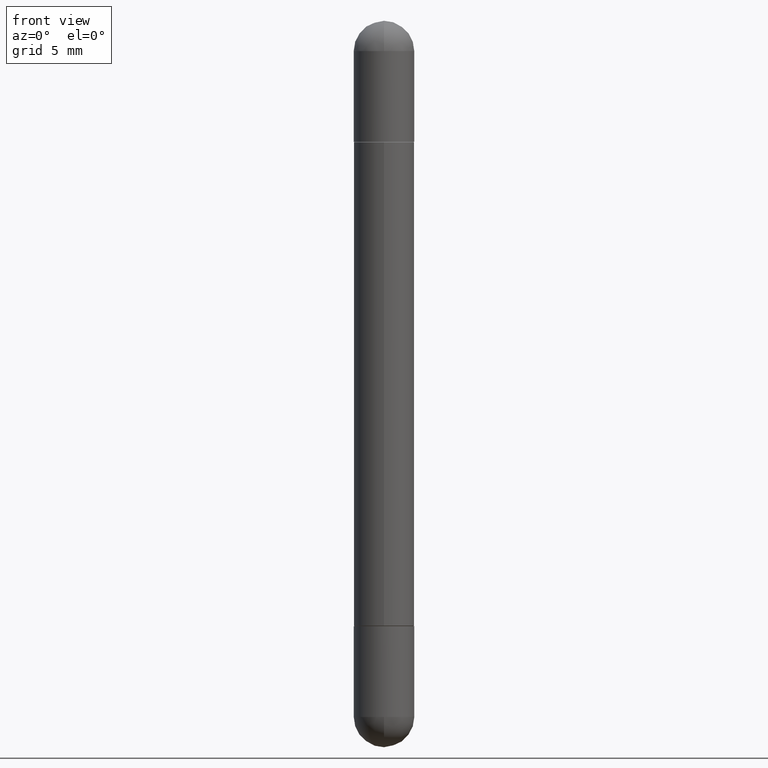
[diagram: clean part render]
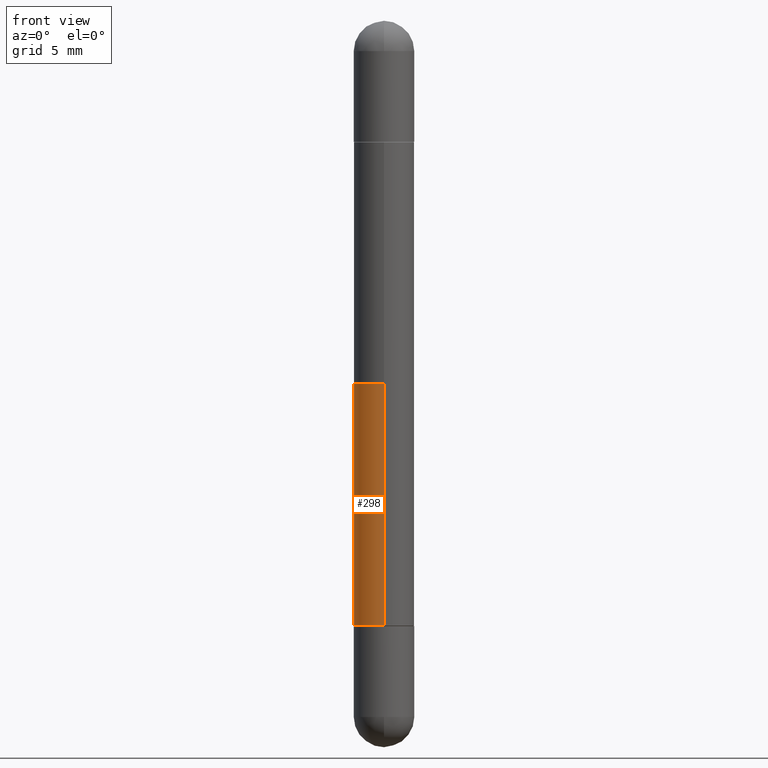
[diagram: same view with one face highlighted and labeled with its STEP entity id]
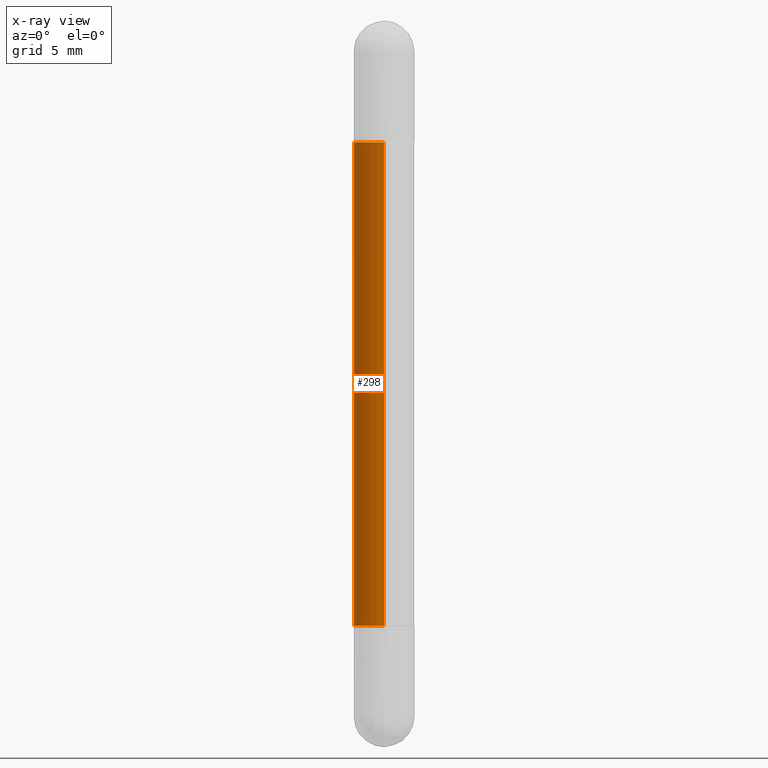
[diagram: x-ray of the same camera — body ghosted, the highlighted face saturated]
A machine part, front view. The second image highlights one B-rep face of the part: STEP entity #298.
The next image is the same camera in x-ray: the body ghosted, the highlighted face saturated — about 0% of this face is hidden behind the body in this view.
In plain terms, the highlighted cylindrical surface (edge-blend (fillet) strip) has radius 1.5875 mm, axis along (-0, 0, -1).
Its self-contained STEP definition (entity closure, byte-faithful):
#14 = VERTEX_POINT ( 'NONE', #497 ) ;
#16 = CARTESIAN_POINT ( 'NONE',  ( 3.065731949019290085E-29, -4.344618647447427774E-15, -0.2510000000000003895 ) ) ;
#25 = CARTESIAN_POINT ( 'NONE',  ( 3.065731949019290085E-29, -4.344618647447427774E-15, -1.248999999999999888 ) ) ;
#57 = ORIENTED_EDGE ( 'NONE', *, *, #784, .F. ) ;
#80 = VERTEX_POINT ( 'NONE', #334 ) ;
#83 = FACE_OUTER_BOUND ( 'NONE', #687, .T. ) ;
#92 = EDGE_CURVE ( 'NONE', #229, #642, #151, .T. ) ;
#102 = DIRECTION ( 'NONE',  ( -2.454549198574291714E-29, 3.478477700118036560E-15, -1.000000000000000000 ) ) ;
#104 = DIRECTION ( 'NONE',  ( -6.982962677686266711E-15, -1.000000000000000000, 4.370956789862809317E-15 ) ) ;
#114 = ORIENTED_EDGE ( 'NONE', *, *, #466, .T. ) ;
#116 = DIRECTION ( 'NONE',  ( -2.454549198574291714E-29, 3.478477700118036560E-15, -1.000000000000000000 ) ) ;
#151 = CIRCLE ( 'NONE', #231, 0.06250000000000016653 ) ;
#221 = DIRECTION ( 'NONE',  ( -6.982962677686266711E-15, -1.000000000000000000, -3.278217592397107185E-15 ) ) ;
#229 = VERTEX_POINT ( 'NONE', #688 ) ;
#231 = AXIS2_PLACEMENT_3D ( 'NONE', #16, #525, #221 ) ;
#265 = AXIS2_PLACEMENT_3D ( 'NONE', #25, #727, #104 ) ;
#297 = ORIENTED_EDGE ( 'NONE', *, *, #92, .F. ) ;
#298 = ADVANCED_FACE ( 'NONE', ( #83 ), #499, .T. ) ;
#312 = LINE ( 'NONE', #684, #385 ) ;
#327 = DIRECTION ( 'NONE',  ( -2.454549198574291714E-29, 3.478477700118036955E-15, -1.000000000000000000 ) ) ;
#334 = CARTESIAN_POINT ( 'NONE',  ( 4.287811248607399511E-16, 0.06249999999999582279, -1.249000000000000332 ) ) ;
#340 = CIRCLE ( 'NONE', #265, 0.06250000000000016653 ) ;
#380 = CARTESIAN_POINT ( 'NONE',  ( 0.000000000000000000, 0.000000000000000000, -1.500000000000000444 ) ) ;
#385 = VECTOR ( 'NONE', #116, 39.37007874015748143 ) ;
#390 = CARTESIAN_POINT ( 'NONE',  ( -4.364351673553621857E-16, -0.06250000000000452416, -0.2510000000000006115 ) ) ;
#466 = EDGE_CURVE ( 'NONE', #229, #80, #312, .T. ) ;
#497 = CARTESIAN_POINT ( 'NONE',  ( -4.364351673553621857E-16, -0.06250000000000451028, -1.248999999999999666 ) ) ;
#499 = CYLINDRICAL_SURFACE ( 'NONE', #506, 0.06250000000000009714 ) ;
#506 = AXIS2_PLACEMENT_3D ( 'NONE', #380, #327, #563 ) ;
#525 = DIRECTION ( 'NONE',  ( 2.454549198574291714E-29, -3.478477700118036955E-15, 1.000000000000000000 ) ) ;
#563 = DIRECTION ( 'NONE',  ( -6.982962677686265133E-15, -1.000000000000000000, -4.370956789862814050E-15 ) ) ;
#604 = CARTESIAN_POINT ( 'NONE',  ( -4.364351673553922611E-16, -0.06250000000000009714, -1.500000000000000666 ) ) ;
#642 = VERTEX_POINT ( 'NONE', #390 ) ;
#662 = LINE ( 'NONE', #604, #785 ) ;
#684 = CARTESIAN_POINT ( 'NONE',  ( 4.287811248607212650E-16, 0.06250000000000009714, -1.500000000000000222 ) ) ;
#687 = EDGE_LOOP ( 'NONE', ( #297, #114, #788, #57 ) ) ;
#688 = CARTESIAN_POINT ( 'NONE',  ( 4.287811248607524250E-16, 0.06249999999999581585, -0.2510000000000002229 ) ) ;
#726 = EDGE_CURVE ( 'NONE', #80, #14, #340, .T. ) ;
#727 = DIRECTION ( 'NONE',  ( -2.454549198574291714E-29, 3.478477700118036955E-15, 1.000000000000000000 ) ) ;
#784 = EDGE_CURVE ( 'NONE', #642, #14, #662, .T. ) ;
#785 = VECTOR ( 'NONE', #102, 39.37007874015748143 ) ;
#788 = ORIENTED_EDGE ( 'NONE', *, *, #726, .T. ) ;